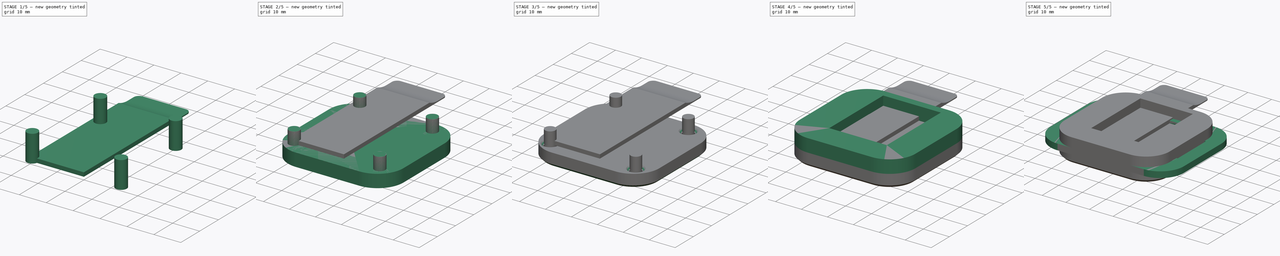
[diagram: build sequence overview — one tinted view per stage of 5, left to right]
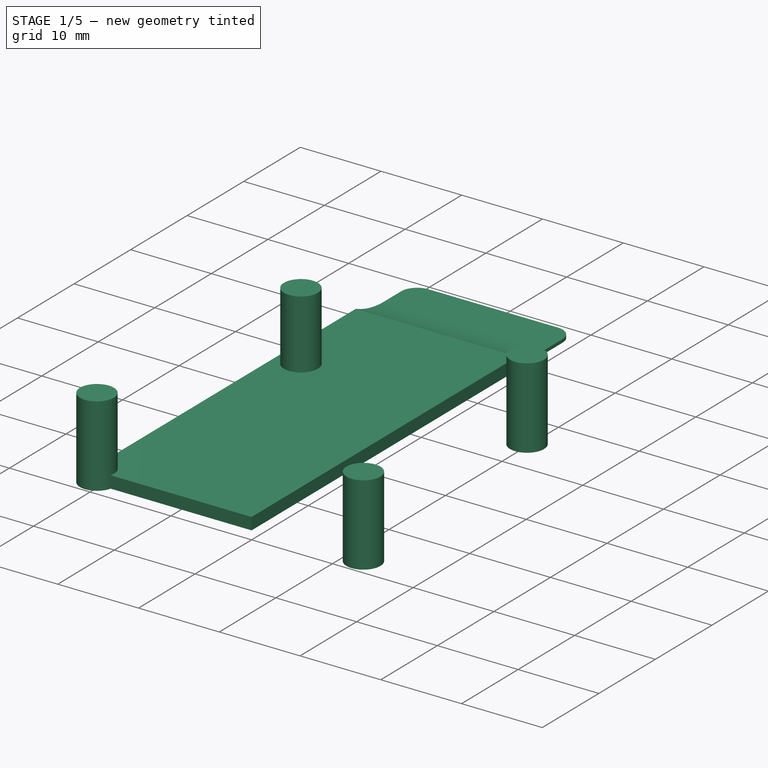
[diagram: stage 1 of 5 — iso view after this stage's code; geometry added in this stage tinted green]
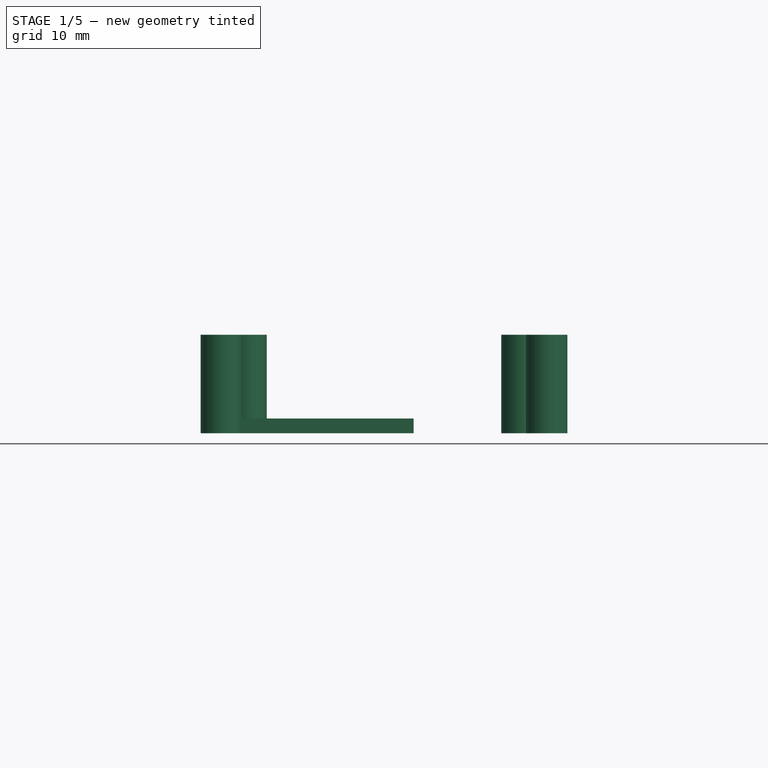
[diagram: stage 1 of 5 — front view after this stage's code; geometry added in this stage tinted green]
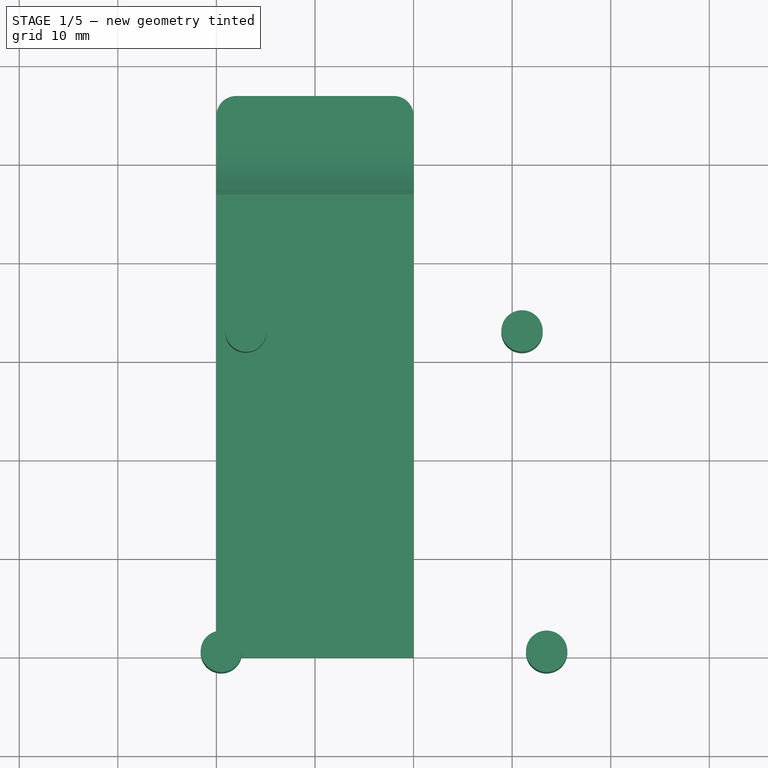
[diagram: stage 1 of 5 — top view after this stage's code; geometry added in this stage tinted green]
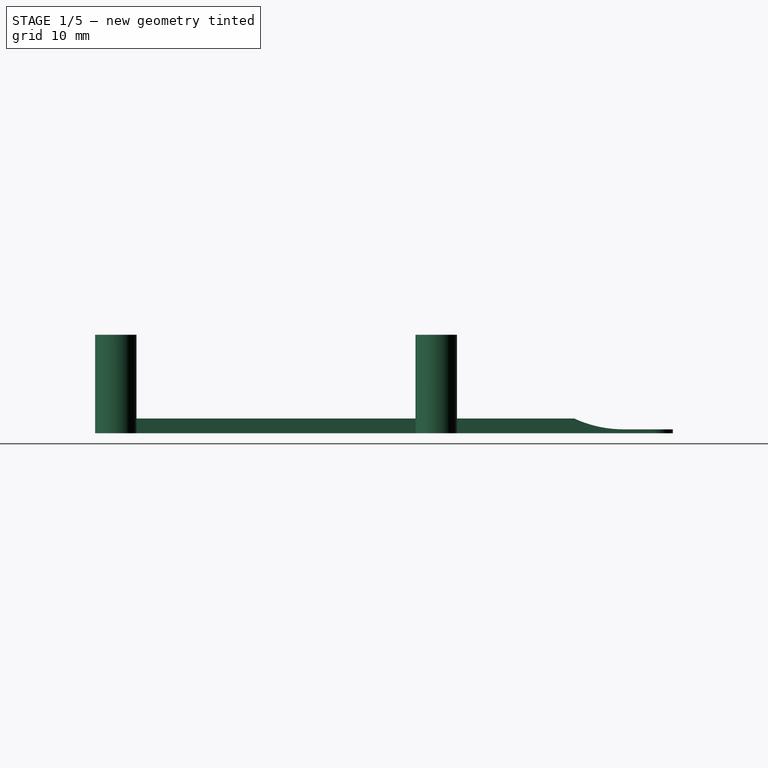
[diagram: stage 1 of 5 — right view after this stage's code; geometry added in this stage tinted green]
FCSTD DOCUMENT  (FreeCAD 0.18R16093 (Git))
Label: EspBoardAssemblyGadgets
License: All rights reserved
LicenseURL: http://en.wikipedia.org/wiki/All_rights_reserved
objects: Part::Extrusion×11, Sketcher::SketchObject×8, Part::Cylinder×8, Part::MultiFuse×6, Part::Cut×5, Image::ImagePlane×3, Part::Chamfer×3, PartDesign::Body×2, Spreadsheet::Sheet×1, Part::Box×1, Part::Offset×1, Part::Offset2D×1, Part::Fillet×1, Part::MultiCommon×1, PartDesign::FeatureBase×1
note: 49 computed .brp shape members not serialized (recipe doc carries the construction recipe); baked Part::Feature solids carry a one-line shape summary decoded from their .brp

FEATURE [Part::Cylinder] Cylinder
  Angle = 360
  AttacherType = Attacher::AttachEngine3D
  Height = 10
  Placement = pos=(0.5,0.5,0) rot=(0,0,1;0rad)
  Radius = 2.1
FEATURE [Part::Cylinder] Cylinder001
  Angle = 360
  AttacherType = Attacher::AttachEngine3D
  Height = 10
  Placement = pos=(33.5,0.5,0) rot=(0,0,1;0rad)
  Radius = 2.1
FEATURE [Part::Cylinder] Cylinder002
  Angle = 360
  AttacherType = Attacher::AttachEngine3D
  Height = 10
  Placement = pos=(3,33,0) rot=(0,0,1;0rad)
  Radius = 2.1
FEATURE [Part::Cylinder] Cylinder003
  Angle = 360
  AttacherType = Attacher::AttachEngine3D
  Height = 10
  Placement = pos=(31,33,0) rot=(0,0,1;0rad)
  Radius = 2.1
FEATURE [Sketcher::SketchObject] Sketch006
  MapMode = 5
  Support = -> [XY_Plane002]
  sketch-geometry (6):
    g0: ArcOfCircle CenterX=2 CenterY=55 CenterZ=0 NormalX=0 NormalY=0 NormalZ=1 AngleXU=0 Radius=2 StartAngle=1.5708 EndAngle=3.14159
    g1: LineSegment StartX=2 StartY=57 StartZ=0 EndX=18 EndY=57 EndZ=0
    g2: ArcOfCircle CenterX=18 CenterY=55 CenterZ=0 NormalX=0 NormalY=0 NormalZ=1 AngleXU=0 Radius=2 StartAngle=0 EndAngle=1.5708
    g3: LineSegment StartX=0 StartY=55 StartZ=0 EndX=0 EndY=0 EndZ=0
    g4: LineSegment StartX=0 StartY=0 StartZ=0 EndX=20 EndY=0 EndZ=0
    g5: LineSegment StartX=20 StartY=0 StartZ=0 EndX=20 EndY=55 EndZ=0
  constraints (19):
    c: Radius(g0) = 2
    c: Coincident(g1,g0)
    c: Horizontal(g1)
    c: Coincident(g2,g1)
    c: Equal(g0,g2)
    c: Vertical(g0,g0)
    c: Vertical(g1,g2)
    c: Horizontal(g0,g0)
    c: Horizontal(g2,g2)
    c: DistanceX(g1,g1) = 16
    c: Coincident(g3,g0)
    c: Vertical(g3)
    c: Coincident(g4,g3)
    c: Horizontal(g4)
    c: Coincident(g5,g4)
    c: Coincident(g5,g2)
    c: Vertical(g5)
    c: DistanceY(g5,g5) = 55
    c: Coincident(g-1,g3)
FEATURE [Sketcher::SketchObject] Sketch007
  ExternalGeometry = -> [Sketch006]
  MapMode = 5
  Placement = pos=(0,0,0) rot=(0.57735,0.57735,0.57735;2.0944rad)
  Support = -> [YZ_Plane002]
  sketch-geometry (6):
    g0: LineSegment StartX=0 StartY=0 StartZ=0 EndX=57 EndY=1.3e-14 EndZ=0
    g1: LineSegment StartX=57 StartY=1.3e-14 StartZ=0 EndX=57 EndY=0.4 EndZ=0
    g2: LineSegment StartX=57 StartY=0.4 StartZ=0 EndX=52 EndY=0.4 EndZ=0
    g3: ArcOfCircle CenterX=52 CenterY=12.3136 CenterZ=0 NormalX=0 NormalY=0 NormalZ=1 AngleXU=0 Radius=11.9136 StartAngle=4.27929 EndAngle=4.71239
    g4: LineSegment StartX=47 StartY=1.5 StartZ=0 EndX=0 EndY=1.5 EndZ=0
    g5: LineSegment StartX=0 StartY=1.5 StartZ=0 EndX=0 EndY=0 EndZ=0
  constraints (16):
    c: Coincident(g0,g-1)
    c: Coincident(g0,g-3)
    c: Coincident(g1,g0)
    c: Vertical(g1)
    c: Coincident(g2,g1)
    c: Horizontal(g2)
    c: Tangent(g3,g2) = 1.5708
    c: Coincident(g4,g3)
    c: Horizontal(g4)
    c: Coincident(g5,g4)
    c: Coincident(g5,g0)
    c: Vertical(g5)
    c: DistanceY(g1,g1) = 0.4
    c: DistanceY(g5,g5) = 1.5
    c: DistanceX(g2,g1) = 5
    c: DistanceX(g3,g2) = 5
FEATURE [Part::Extrusion] Extrude011
  Base = -> Sketch007
  Dir = (1,-2e-16,3e-16)
  DirMode = 2
  FaceMakerClass = Part::FaceMakerBullseye
  LengthFwd = 40
  LengthRev = 0
  Solid = true
  Symmetric = false
FEATURE [Part::Extrusion] Extrude012
  Base = -> Sketch006
  Dir = (0,0,1)
  DirMode = 2
  FaceMakerClass = Part::FaceMakerBullseye
  LengthFwd = 10
  LengthRev = 0
  Solid = true
  Symmetric = false
FEATURE [Part::MultiCommon] Common  label="squeezee"
  Shapes = -> [Extrude011,Extrude012]
FEATURE [PartDesign::FeatureBase] BaseFeature
  BaseFeature = -> Common
FEATURE [PartDesign::Body] Body002
  BaseFeature = -> Common
  Group = -> [BaseFeature,Sketch006,Sketch007]
  Origin = -> Origin002
  Tip = -> BaseFeature
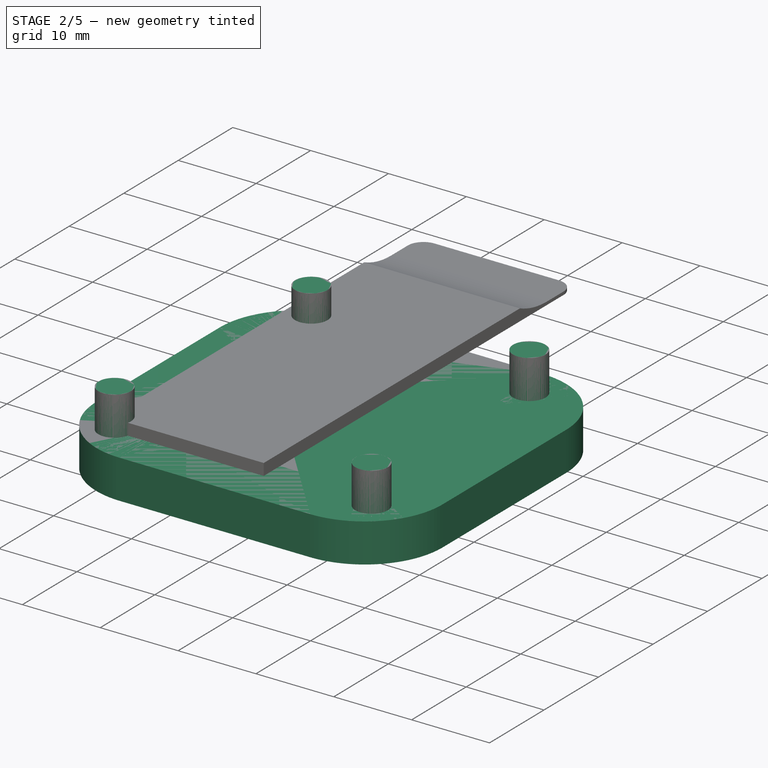
[diagram: stage 2 of 5 — iso view after this stage's code; geometry added in this stage tinted green]
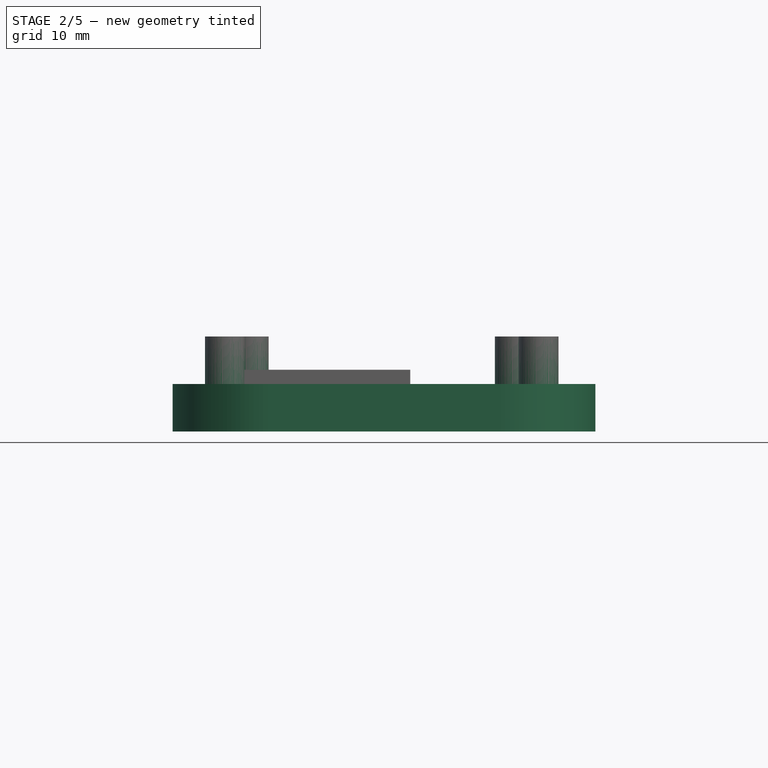
[diagram: stage 2 of 5 — front view after this stage's code; geometry added in this stage tinted green]
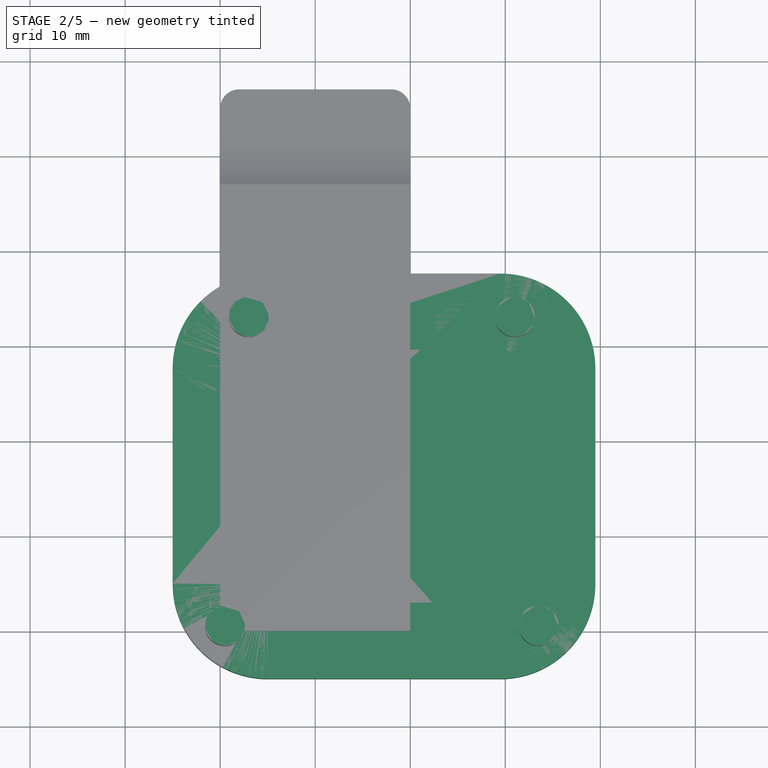
[diagram: stage 2 of 5 — top view after this stage's code; geometry added in this stage tinted green]
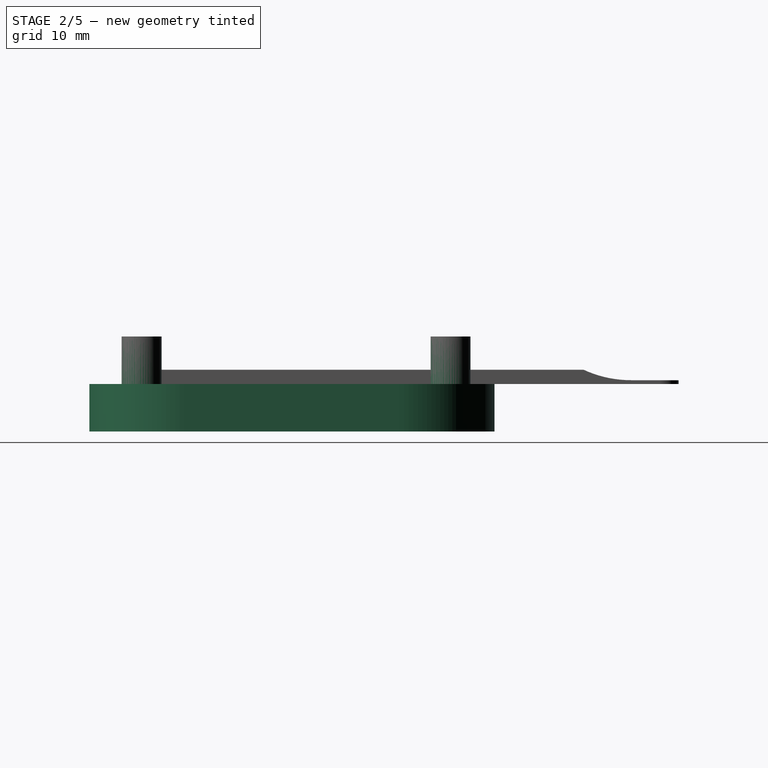
[diagram: stage 2 of 5 — right view after this stage's code; geometry added in this stage tinted green]
FEATURE [Part::Extrusion] Extrude006
  Base = -> Sketch005
  Dir = (0,0,1)
  DirMode = 2
  FaceMakerClass = Part::FaceMakerBullseye
  LengthFwd = 0
  LengthRev = 0.2
  Solid = true
  Symmetric = false
  expr: LengthRev = p.sst
FEATURE [Part::Extrusion] Extrude007
  Base = -> Sketch004
  Dir = (0,0,1)
  DirMode = 2
  FaceMakerClass = Part::FaceMakerBullseye
  LengthFwd = 10
  LengthRev = 10
  Solid = true
  Symmetric = false
FEATURE [Part::Cut] Cut002  label="SilkScreen"
  Base = -> Extrude006
  Tool = -> Extrude007
FEATURE [Part::Offset2D] Offset2D
  Fill = false
  Intersection = false
  Join = 0
  Mode = 1
  SelfIntersection = false
  Source = -> Sketch005
  Value = -8
FEATURE [Part::Extrusion] Extrude009
  Base = -> Offset2D
  Dir = (0,0,1)
  DirMode = 2
  FaceMakerClass = Part::FaceMakerBullseye
  LengthFwd = 0
  LengthRev = -10
  Solid = true
  Symmetric = false
FEATURE [Part::Extrusion] Extrude010
  Base = -> Sketch005
  Dir = (0,0,1)
  DirMode = 2
  FaceMakerClass = Part::FaceMakerBullseye
  LengthFwd = 0
  LengthRev = -5
  Solid = true
  Symmetric = false
FEATURE [Part::Cut] Cut003
  Base = -> Extrude010
  Placement = pos=(0,0,-5) rot=(0,0,1;0rad)
  Tool = -> Extrude009
FEATURE [Part::MultiFuse] Fusion003
  Placement = pos=(0,0,-5) rot=(0,0,1;0rad)
  Shapes = -> [Cylinder,Cylinder001,Cylinder002,Cylinder003]
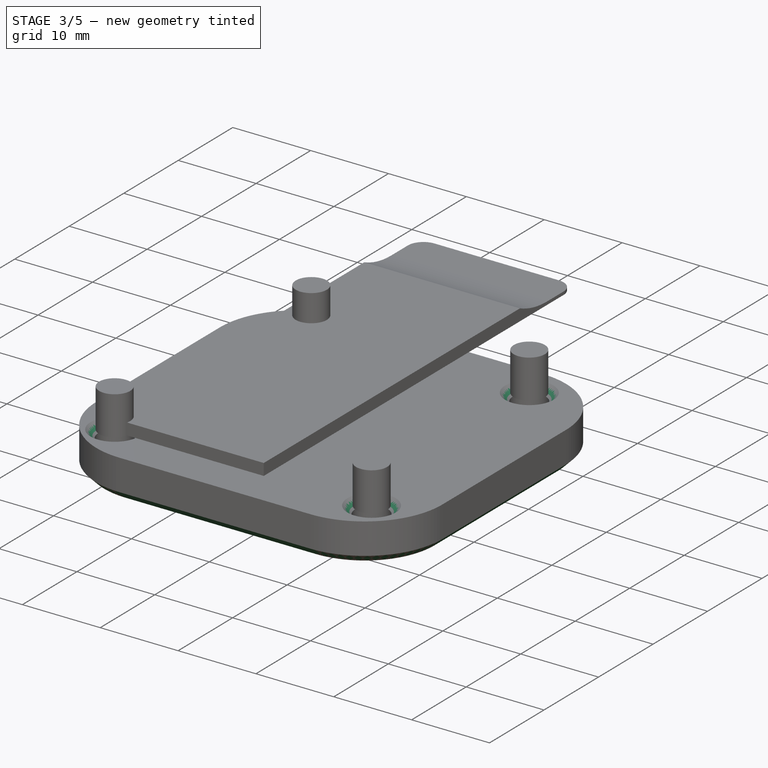
[diagram: stage 3 of 5 — iso view after this stage's code; geometry added in this stage tinted green]
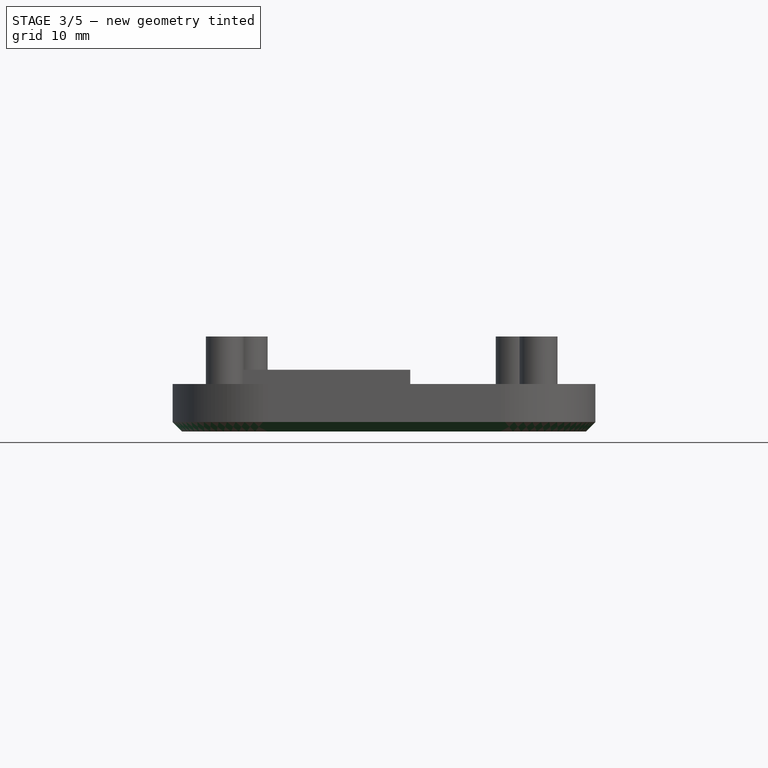
[diagram: stage 3 of 5 — front view after this stage's code; geometry added in this stage tinted green]
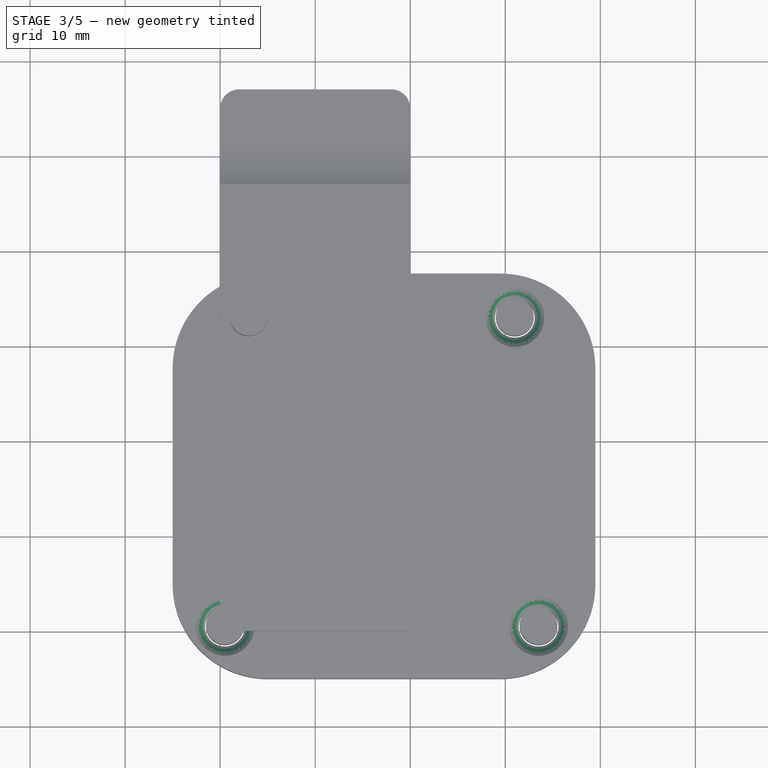
[diagram: stage 3 of 5 — top view after this stage's code; geometry added in this stage tinted green]
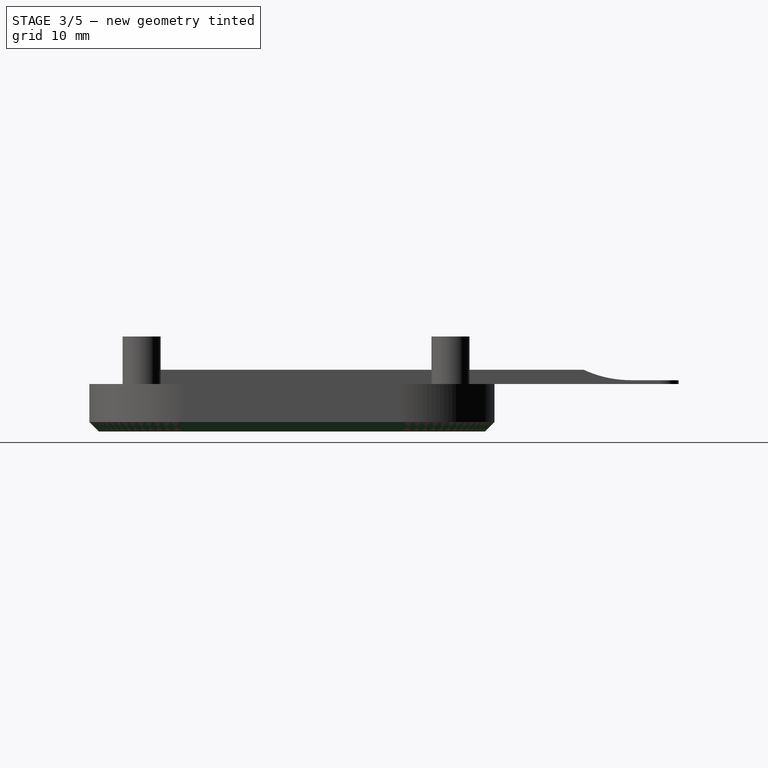
[diagram: stage 3 of 5 — right view after this stage's code; geometry added in this stage tinted green]
FEATURE [Part::MultiFuse] Fusion002
  Shapes = -> [Cut002,Cut003]
FEATURE [Part::Cylinder] Cylinder004
  Angle = 360
  AttacherType = Attacher::AttachEngine3D
  Height = 5
  Placement = pos=(0.5,0.5,0) rot=(0,0,1;0rad)
  Radius = 2
FEATURE [Part::Cylinder] Cylinder005
  Angle = 360
  AttacherType = Attacher::AttachEngine3D
  Height = 5
  Placement = pos=(33.5,0.5,0) rot=(0,0,1;0rad)
  Radius = 2
FEATURE [Part::Cylinder] Cylinder006
  Angle = 360
  AttacherType = Attacher::AttachEngine3D
  Height = 5
  Placement = pos=(3,33,0) rot=(0,0,1;0rad)
  Radius = 2
FEATURE [Part::Cylinder] Cylinder007
  Angle = 360
  AttacherType = Attacher::AttachEngine3D
  Height = 5
  Placement = pos=(31,33,0) rot=(0,0,1;0rad)
  Radius = 2
FEATURE [Part::Cut] Cut004
  Base = -> Fusion002
  Tool = -> Fusion003
FEATURE [Part::Chamfer] Chamfer002
  Base = -> Cut004
  Edges = 6 edges r=1: [Edge19,Edge20,Edge29,Edge30,Edge42,Edge48]
FEATURE [Part::Fillet] Fillet  label="StencilPlate"
  Base = -> Chamfer002
  Edges = 1 edges r=2: [Edge166]
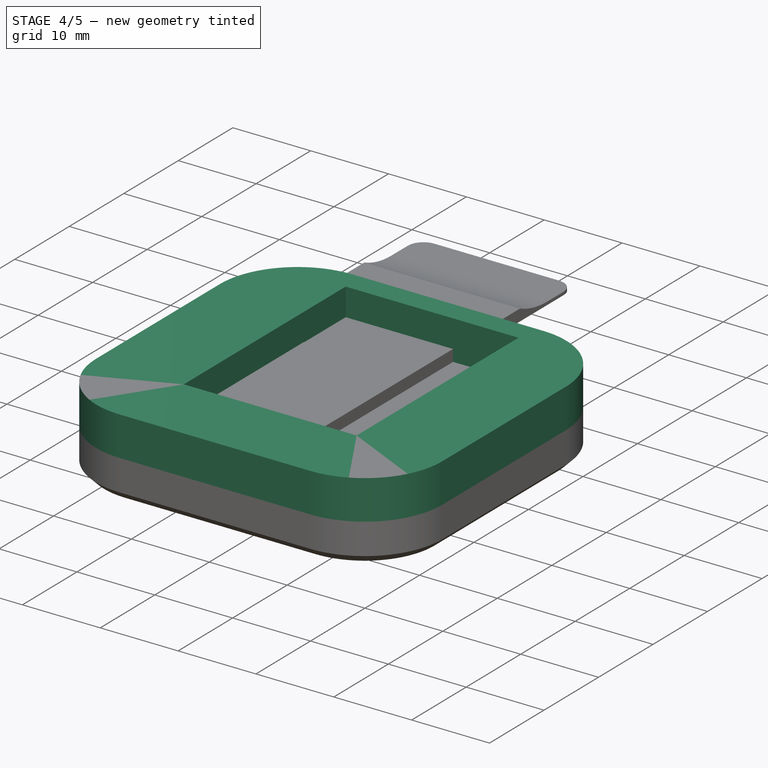
[diagram: stage 4 of 5 — iso view after this stage's code; geometry added in this stage tinted green]
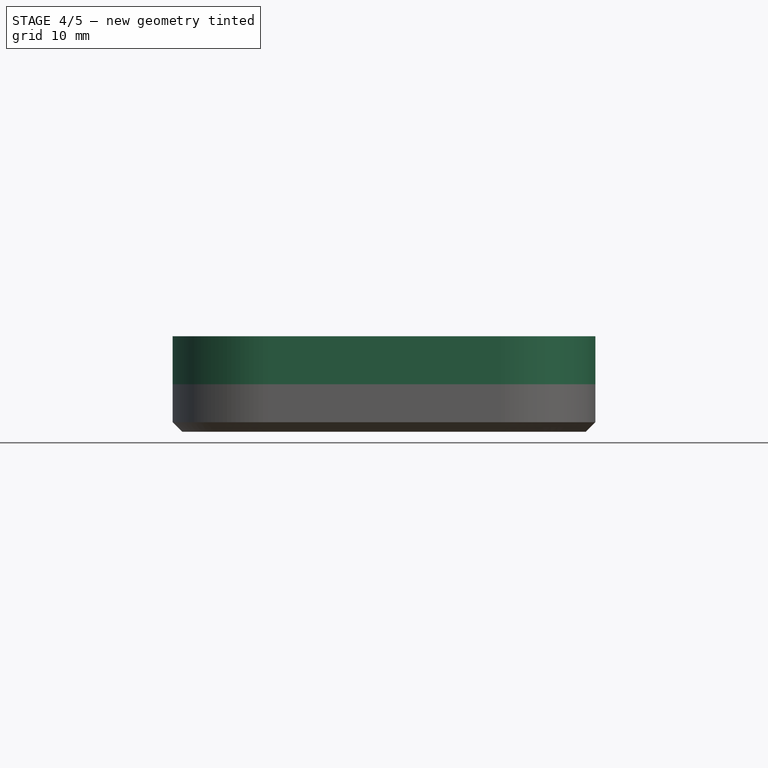
[diagram: stage 4 of 5 — front view after this stage's code; geometry added in this stage tinted green]
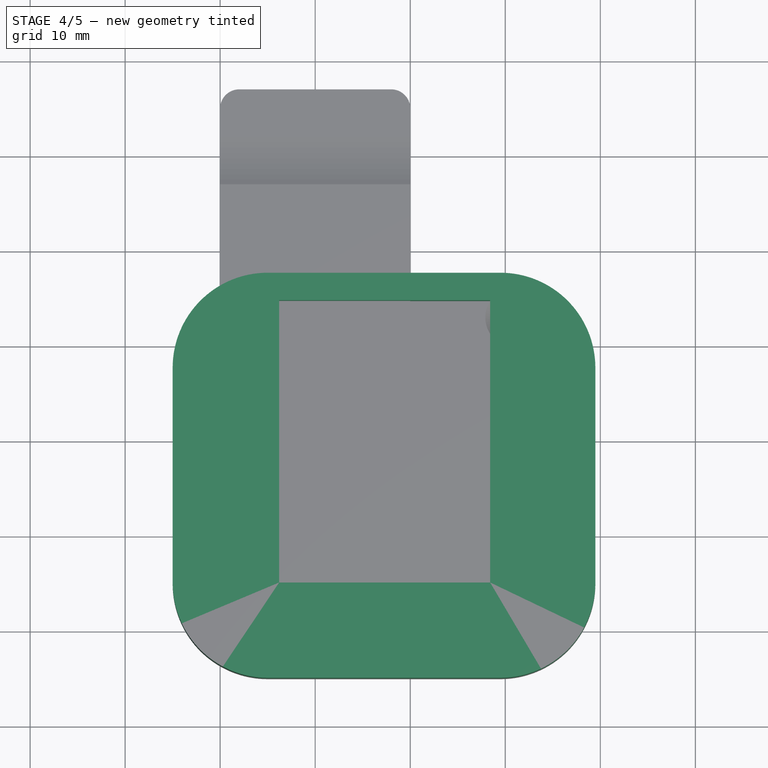
[diagram: stage 4 of 5 — top view after this stage's code; geometry added in this stage tinted green]
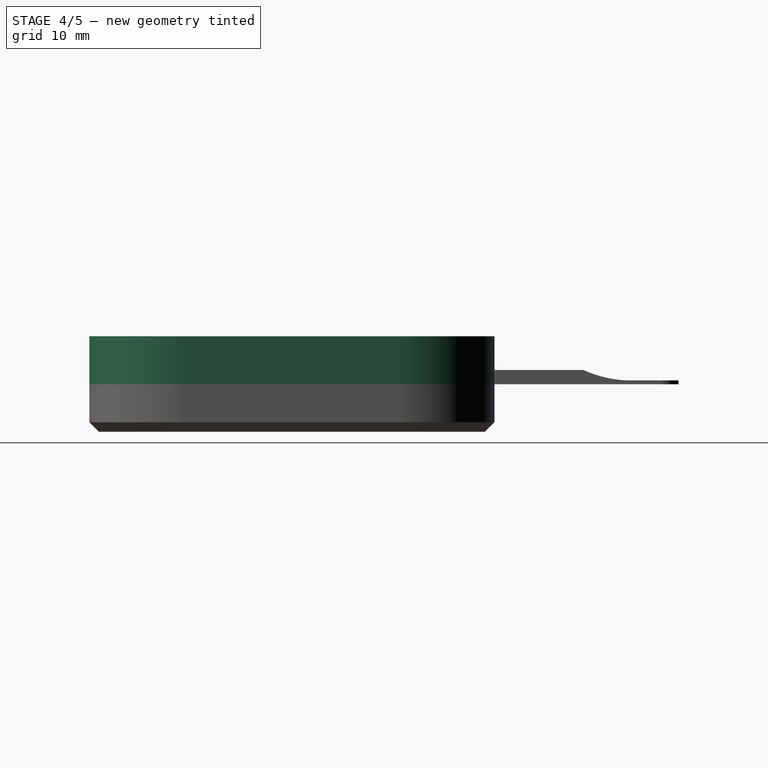
[diagram: stage 4 of 5 — right view after this stage's code; geometry added in this stage tinted green]
FEATURE [Sketcher::SketchObject] Sketch004  label="soldermask"
  MapMode = 5
  Support = -> [XY_Plane]
  sketch-geometry (56):
    g0: LineSegment StartX=12.0779 StartY=23.8044 StartZ=0 EndX=13.0701 EndY=23.8044 EndZ=0
    g1: LineSegment StartX=13.0701 StartY=23.8044 StartZ=0 EndX=13.0701 EndY=22.398 EndZ=0
    g2: LineSegment StartX=13.0701 StartY=22.398 StartZ=0 EndX=12.0779 EndY=22.398 EndZ=0
    g3: LineSegment StartX=12.0779 StartY=22.398 StartZ=0 EndX=12.0779 EndY=23.8044 EndZ=0
    g4: LineSegment StartX=13.9449 StartY=23.7826 StartZ=0 EndX=14.9216 EndY=23.7826 EndZ=0
    g5: LineSegment StartX=14.9216 StartY=23.7826 StartZ=0 EndX=14.9216 EndY=22.3871 EndZ=0
    g6: LineSegment StartX=14.9216 StartY=22.3871 StartZ=0 EndX=13.9449 EndY=22.3871 EndZ=0
    g7: LineSegment StartX=13.9449 StartY=22.3871 StartZ=0 EndX=13.9449 EndY=23.7826 EndZ=0
    g8: LineSegment StartX=14.1681 StartY=20.097 StartZ=0 EndX=15.7308 EndY=20.097 EndZ=0
    g9: LineSegment StartX=15.7308 StartY=20.097 StartZ=0 EndX=15.7308 EndY=17.9824 EndZ=0
    g10: LineSegment StartX=15.7308 StartY=17.9824 StartZ=0 EndX=14.1681 EndY=17.9824 EndZ=0
    g11: LineSegment StartX=14.1681 StartY=17.9824 StartZ=0 EndX=14.1681 EndY=20.097 EndZ=0
    g12: LineSegment StartX=11.8578 StartY=20.097 StartZ=0 EndX=13.4205 EndY=20.097 EndZ=0
    g13: LineSegment StartX=13.4205 StartY=20.097 StartZ=0 EndX=13.4205 EndY=17.9824 EndZ=0
    g14: LineSegment StartX=13.4205 StartY=17.9824 StartZ=0 EndX=11.8578 EndY=17.9824 EndZ=0
    g15: LineSegment StartX=11.8578 StartY=17.9824 StartZ=0 EndX=11.8578 EndY=20.097 EndZ=0
    g16: LineSegment StartX=9.51614 StartY=20.097 StartZ=0 EndX=11.0789 EndY=20.097 EndZ=0
    g17: LineSegment StartX=11.0789 StartY=20.097 StartZ=0 EndX=11.0789 EndY=17.9824 EndZ=0
    g18: LineSegment StartX=11.0789 StartY=17.9824 StartZ=0 EndX=9.51614 EndY=17.9824 EndZ=0
    g19: LineSegment StartX=9.51614 StartY=17.9824 StartZ=0 EndX=9.51614 EndY=20.097 EndZ=0
    g20: LineSegment StartX=10.6809 StartY=13.8025 StartZ=0 EndX=14.5523 EndY=13.8025 EndZ=0
    g21: LineSegment StartX=14.5523 StartY=13.8025 StartZ=0 EndX=14.5523 EndY=11.7179 EndZ=0
    g22: LineSegment StartX=14.5523 StartY=11.7179 StartZ=0 EndX=10.6809 EndY=11.7179 EndZ=0
    g23: LineSegment StartX=10.6809 StartY=11.7179 StartZ=0 EndX=10.6809 EndY=13.8025 EndZ=0
    g24: LineSegment StartX=10.6208 StartY=22.6272 StartZ=0 EndX=11.5608 EndY=22.6272 EndZ=0
    g25: LineSegment StartX=11.5608 StartY=22.6272 StartZ=0 EndX=11.5608 EndY=21.6872 EndZ=0
    g26: LineSegment StartX=11.5608 StartY=21.6872 StartZ=0 EndX=10.6208 EndY=21.6872 EndZ=0
    g27: LineSegment StartX=10.6208 StartY=21.6872 StartZ=0 EndX=10.6208 EndY=22.6272 EndZ=0
    g28: LineSegment StartX=10.5198 StartY=24.2112 StartZ=0 EndX=11.4598 EndY=24.2112 EndZ=0
    g29: LineSegment StartX=11.4598 StartY=24.2112 StartZ=0 EndX=11.4598 EndY=23.2712 EndZ=0
    g30: LineSegment StartX=11.4598 StartY=23.2712 StartZ=0 EndX=10.5198 EndY=23.2712 EndZ=0
    g31: LineSegment StartX=10.5198 StartY=23.2712 StartZ=0 EndX=10.5198 EndY=24.2112 EndZ=0
    g32: LineSegment StartX=10.5198 StartY=25.8066 StartZ=0 EndX=11.4598 EndY=25.8066 EndZ=0
    g33: LineSegment StartX=11.4598 StartY=25.8066 StartZ=0 EndX=11.4598 EndY=24.8666 EndZ=0
    g34: LineSegment StartX=11.4598 StartY=24.8666 StartZ=0 EndX=10.5198 EndY=24.8666 EndZ=0
    g35: LineSegment StartX=10.5198 StartY=24.8666 StartZ=0 EndX=10.5198 EndY=25.8066 EndZ=0
    g36: LineSegment StartX=8.69664 StartY=25.8066 StartZ=0 EndX=9.63664 EndY=25.8066 EndZ=0
    g37: LineSegment StartX=9.63664 StartY=25.8066 StartZ=0 EndX=9.63664 EndY=24.8666 EndZ=0
    g38: LineSegment StartX=9.63664 StartY=24.8666 StartZ=0 EndX=8.69664 EndY=24.8666 EndZ=0
    g39: LineSegment StartX=8.69664 StartY=24.8666 StartZ=0 EndX=8.69664 EndY=25.8066 EndZ=0
    g40: LineSegment StartX=8.69664 StartY=24.2112 StartZ=0 EndX=9.63664 EndY=24.2112 EndZ=0
    g41: LineSegment StartX=9.63664 StartY=24.2112 StartZ=0 EndX=9.63664 EndY=23.2712 EndZ=0
    g42: LineSegment StartX=9.63664 StartY=23.2712 StartZ=0 EndX=8.69664 EndY=23.2712 EndZ=0
    g43: LineSegment StartX=8.69664 StartY=23.2712 StartZ=0 EndX=8.69664 EndY=24.2112 EndZ=0
    g44: LineSegment StartX=8.97061 StartY=22.6272 StartZ=0 EndX=9.91061 EndY=22.6272 EndZ=0
    g45: LineSegment StartX=9.91061 StartY=22.6272 StartZ=0 EndX=9.91061 EndY=21.6872 EndZ=0
    g46: LineSegment StartX=9.91061 StartY=21.6872 StartZ=0 EndX=8.97061 EndY=21.6872 EndZ=0
    g47: LineSegment StartX=8.97061 StartY=21.6872 StartZ=0 EndX=8.97061 EndY=22.6272 EndZ=0
    g48: LineSegment StartX=7.0541 StartY=22.0767 StartZ=0 EndX=7.9941 EndY=22.0767 EndZ=0
    g49: LineSegment StartX=7.9941 StartY=22.0767 StartZ=0 EndX=7.9941 EndY=21.1367 EndZ=0
    g50: LineSegment StartX=7.9941 StartY=21.1367 StartZ=0 EndX=7.0541 EndY=21.1367 EndZ=0
    g51: LineSegment StartX=7.0541 StartY=21.1367 StartZ=0 EndX=7.0541 EndY=22.0767 EndZ=0
    g52: LineSegment StartX=7.0541 StartY=20.5162 StartZ=0 EndX=7.9941 EndY=20.5162 EndZ=0
    g53: LineSegment StartX=7.9941 StartY=20.5162 StartZ=0 EndX=7.9941 EndY=19.5762 EndZ=0
    g54: LineSegment StartX=7.9941 StartY=19.5762 StartZ=0 EndX=7.0541 EndY=19.5762 EndZ=0
    g55: LineSegment StartX=7.0541 StartY=19.5762 StartZ=0 EndX=7.0541 EndY=20.5162 EndZ=0
  constraints (140):
    c: Coincident(g0,g1)
    c: Coincident(g1,g2)
    c: Coincident(g2,g3)
    c: Coincident(g3,g0)
    c: Horizontal(g0)
    c: Horizontal(g2)
    c: Vertical(g1)
    c: Vertical(g3)
    c: Coincident(g4,g5)
    c: Coincident(g5,g6)
    c: Coincident(g6,g7)
    c: Coincident(g7,g4)
    c: Horizontal(g4)
    c: Horizontal(g6)
    c: Vertical(g5)
    c: Vertical(g7)
    c: Coincident(g8,g9)
    c: Coincident(g9,g10)
    c: Coincident(g10,g11)
    c: Coincident(g11,g8)
    c: Horizontal(g8)
    c: Horizontal(g10)
    c: Vertical(g9)
    c: Vertical(g11)
    c: Coincident(g12,g13)
    c: Coincident(g13,g14)
    c: Coincident(g14,g15)
    c: Coincident(g15,g12)
    c: Horizontal(g12)
    c: Horizontal(g14)
    c: Vertical(g13)
    c: Vertical(g15)
    c: Coincident(g16,g17)
    c: Coincident(g17,g18)
    c: Coincident(g18,g19)
    c: Coincident(g19,g16)
    c: Horizontal(g16)
    c: Horizontal(g18)
    c: Vertical(g17)
    c: Vertical(g19)
    c: Coincident(g20,g21)
    c: Coincident(g21,g22)
    c: Coincident(g22,g23)
    c: Coincident(g23,g20)
    c: Horizontal(g20)
    c: Horizontal(g22)
    c: Vertical(g21)
    c: Vertical(g23)
    c: Coincident(g24,g25)
    c: Coincident(g25,g26)
    c: Coincident(g26,g27)
    c: Coincident(g27,g24)
    c: Horizontal(g24)
    c: Horizontal(g26)
    c: Vertical(g25)
    c: Vertical(g27)
    c: Coincident(g28,g29)
    c: Coincident(g29,g30)
    c: Coincident(g30,g31)
    c: Coincident(g31,g28)
    c: Horizontal(g28)
    c: Horizontal(g30)
    c: Coincident(g32,g33)
    c: Coincident(g33,g34)
    c: Coincident(g34,g35)
    c: Coincident(g35,g32)
    c: Horizontal(g32)
    c: Horizontal(g34)
    c: Vertical(g33)
    c: Vertical(g35)
    c: Coincident(g36,g37)
    c: Coincident(g37,g38)
    c: Coincident(g38,g39)
    c: Coincident(g39,g36)
    c: Horizontal(g36)
    c: Horizontal(g38)
    c: Vertical(g37)
    c: Vertical(g39)
    c: Coincident(g40,g41)
    c: Coincident(g41,g42)
    c: Coincident(g42,g43)
    c: Coincident(g43,g40)
    c: Horizontal(g40)
    c: Horizontal(g42)
    c: Vertical(g41)
    c: Vertical(g43)
    c: Coincident(g44,g45)
    c: Coincident(g45,g46)
    c: Coincident(g46,g47)
    c: Coincident(g47,g44)
    c: Horizontal(g44)
    c: Horizontal(g46)
    c: Vertical(g45)
    c: Vertical(g47)
    c: Coincident(g48,g49)
    c: Coincident(g49,g50)
    c: Coincident(g50,g51)
    c: Coincident(g51,g48)
    c: Horizontal(g48)
    c: Horizontal(g50)
    c: Vertical(g49)
    c: Vertical(g51)
    c: Coincident(g52,g53)
    c: Coincident(g53,g54)
    c: Coincident(g54,g55)
    c: Coincident(g55,g52)
    c: Horizontal(g52)
    c: Horizontal(g54)
    c: Vertical(g53)
    c: Vertical(g55)
    c: Equal(g26,g25)
    c: Equal(g25,g30)
    c: Equal(g30,g29)
    c: Equal(g29,g34)
    c: Equal(g34,g33)
    c: Vertical(g31)
    c: Vertical(g29)
    c: Vertical(g33,g29)
    c: Equal(g37,g38)
    c: Equal(g38,g41)
    c: Equal(g41,g42)
    c: Equal(g42,g45)
    c: Equal(g45,g46)
    c: Equal(g46,g49)
    c: Equal(g49,g50)
    c: Equal(g50,g53)
    c: Equal(g53,g54)
    c: Equal(g54,g26)
    c: Horizontal(g45,g25)
    c: DistanceX(g32,g32) = 0.94
    c: Horizontal(g36,g32)
    c: Horizontal(g40,g28)
    c: Vertical(g37,g40)
    c: Vertical(g49,g52)
    c: Horizontal(g16,g12)
    c: Horizontal(g12,g8)
    c: Horizontal(g10,g13)
    c: Horizontal(g13,g17)
    c: Equal(g18,g14)
    c: Equal(g14,g10)
FEATURE [Image::ImagePlane] ImagePlane002
  Placement = pos=(17.291,16.6132,0) rot=(0,0,1;0rad)
  XSize = 35.3546
  YSize = 21.38
  expr: YSize = 21.38
  expr: XSize = 350 / 9.899699999999999
FEATURE [Sketcher::SketchObject] Sketch005  label="outline_stencil"
  ExternalGeometry = -> [Sketch]
  MapMode = 5
  Support = -> [XY_Plane]
  sketch-geometry (8):
    g0: ArcOfCircle CenterX=5 CenterY=27.624 CenterZ=0 NormalX=0 NormalY=0 NormalZ=1 AngleXU=0 Radius=10 StartAngle=1.5708 EndAngle=3.14159
    g1: ArcOfCircle CenterX=29.479 CenterY=27.624 CenterZ=0 NormalX=0 NormalY=0 NormalZ=1 AngleXU=0 Radius=10 StartAngle=0 EndAngle=1.5708
    g2: ArcOfCircle CenterX=29.479 CenterY=5 CenterZ=0 NormalX=0 NormalY=0 NormalZ=1 AngleXU=0 Radius=10 StartAngle=4.71239 EndAngle=6.28319
    g3: ArcOfCircle CenterX=5 CenterY=5 CenterZ=0 NormalX=0 NormalY=0 NormalZ=1 AngleXU=0 Radius=10 StartAngle=3.14159 EndAngle=4.71239
    g4: LineSegment StartX=5 StartY=37.624 StartZ=0 EndX=29.479 EndY=37.624 EndZ=0
    g5: LineSegment StartX=39.479 StartY=27.624 StartZ=0 EndX=39.479 EndY=5 EndZ=0
    g6: LineSegment StartX=29.479 StartY=-5 StartZ=0 EndX=5 EndY=-5 EndZ=0
    g7: LineSegment StartX=-5 StartY=5 StartZ=0 EndX=-5 EndY=27.624 EndZ=0
  constraints (20):
    c: Horizontal(g4)
    c: Vertical(g7)
    c: Vertical(g5)
    c: Equal(g0,g1)
    c: Equal(g1,g2)
    c: Equal(g2,g3)
    c: Horizontal(g6)
    c: Tangent(g4,g1) = 1.5708
    c: Tangent(g5,g1) = 1.5708
    c: Tangent(g5,g2) = 1.5708
    c: Tangent(g6,g2) = 1.5708
    c: DistanceY(g-3,g1) = 5
    c: DistanceY(g2,g-6) = 5
    c: Tangent(g4,g0) = 1.5708
    c: Tangent(g7,g0) = 1.5708
    c: Tangent(g3,g7) = 1.5708
    c: Tangent(g6,g3) = 1.5708
    c: Radius(g0) = 10
    c: DistanceX(g0,g-11) = 5
    c: DistanceX(g-11,g1) = 5
FEATURE [PartDesign::Body] Body
  Group = -> [Sketch,Sketch001,Sketch002,Sketch003,Sketch004,Sketch005]
  Origin = -> Origin
FEATURE [Part::Extrusion] Extrude003  label="StencilBaseBody"
  Base = -> Sketch005
  Dir = (0,0,1)
  DirMode = 2
  FaceMakerClass = Part::FaceMakerBullseye
  LengthFwd = 5.05
  LengthRev = 0
  Solid = true
  Symmetric = false
  expr: LengthFwd = p.bbt + p.tbk
FEATURE [Part::Extrusion] Extrude004
  Base = -> Sketch002
  Dir = (0,0,1)
  DirMode = 2
  FaceMakerClass = Part::FaceMakerBullseye
  LengthFwd = 1.55
  LengthRev = 0
  Solid = true
  Symmetric = false
  expr: LengthFwd = p.bbt
FEATURE [Part::Offset] Offset
  Fill = false
  Intersection = false
  Join = 2
  Mode = 0
  SelfIntersection = false
  Value = 2
FEATURE [Part::MultiFuse] Fusion001
  Shapes = -> [Extrude004,Offset]
FEATURE [Part::Cut] Cut001
  Base = -> Extrude003
  Tool = -> Fusion001
FEATURE [Part::MultiFuse] Fusion004
  Placement = pos=(0,0,-5) rot=(0,0,1;0rad)
  Shapes = -> [Cylinder007,Cylinder006,Cylinder005,Cylinder004]
FEATURE [Part::MultiFuse] Fusion005
  Shapes = -> [Cut001,Fusion004]
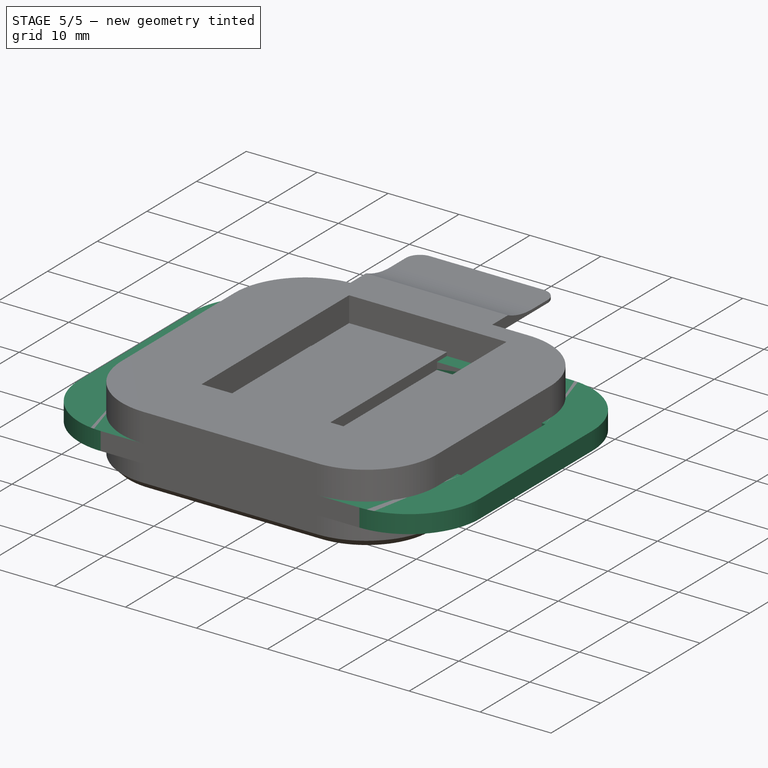
[diagram: stage 5 of 5 — iso view after this stage's code; geometry added in this stage tinted green]
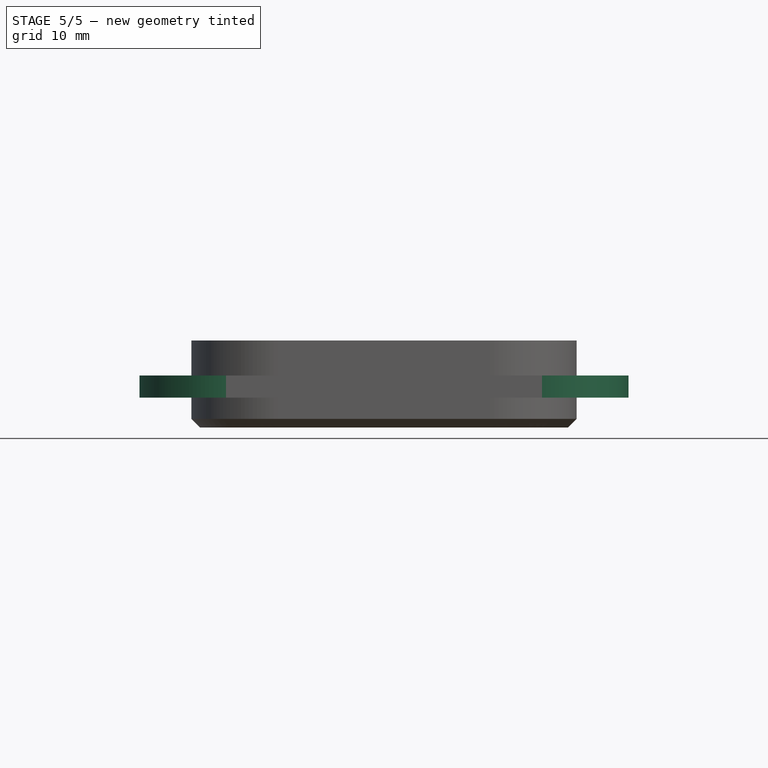
[diagram: stage 5 of 5 — front view after this stage's code; geometry added in this stage tinted green]
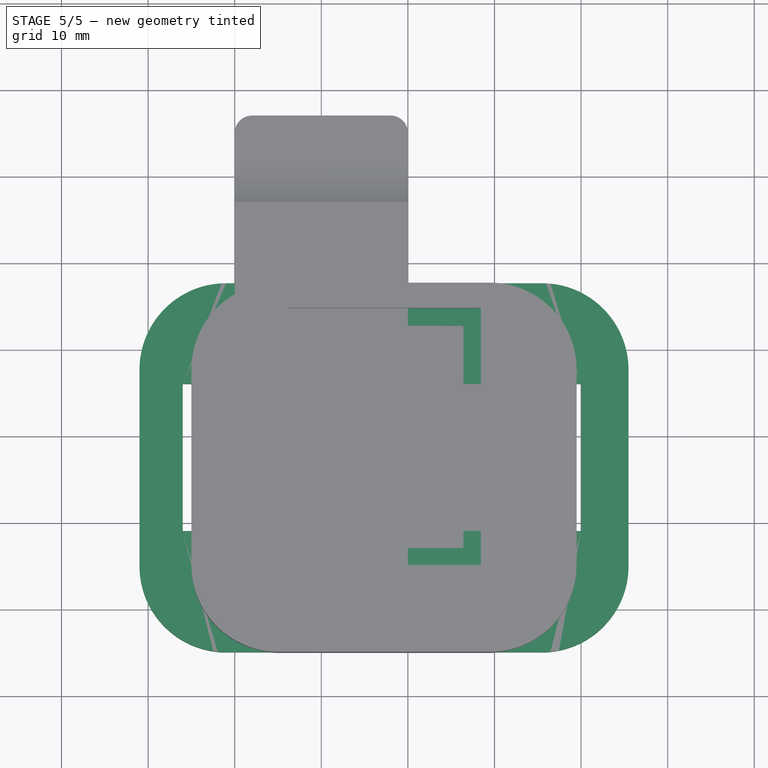
[diagram: stage 5 of 5 — top view after this stage's code; geometry added in this stage tinted green]
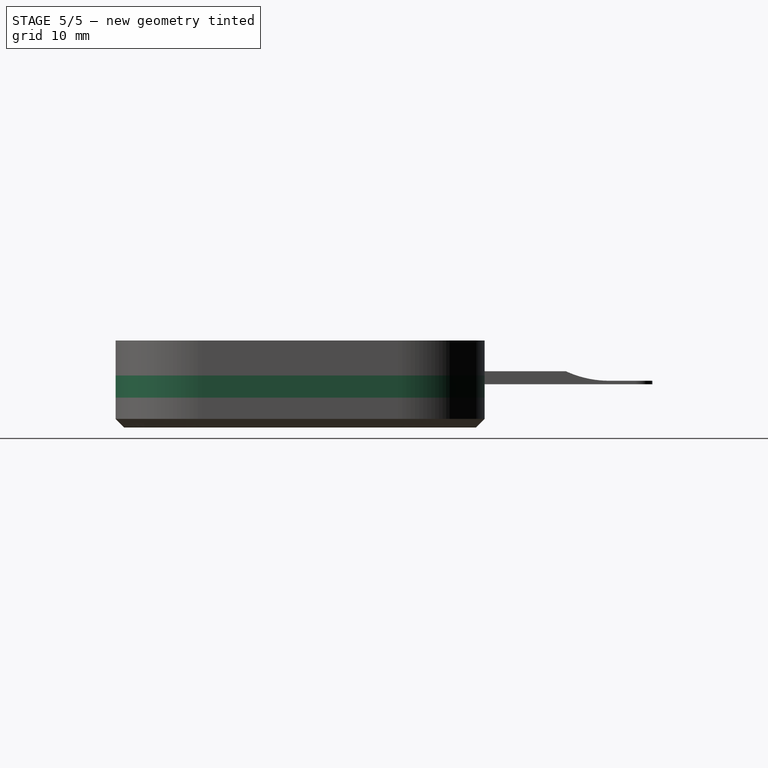
[diagram: stage 5 of 5 — right view after this stage's code; geometry added in this stage tinted green]
FEATURE [Sketcher::SketchObject] Sketch  label="base_board_geometry"
  MapMode = 5
  Support = -> [XY_Plane]
  sketch-geometry (17):
    g0: LineSegment StartX=9.461 StartY=0 StartZ=0 EndX=25.653 EndY=0 EndZ=0
    g1: LineSegment StartX=25.653 StartY=0 StartZ=0 EndX=25.653 EndY=6.413 EndZ=0
    g2: LineSegment StartX=25.653 StartY=6.413 StartZ=0 EndX=34.479 EndY=6.413 EndZ=0
    g3: LineSegment StartX=34.479 StartY=6.413 StartZ=0 EndX=34.479 EndY=27.05 EndZ=0
    g4: LineSegment StartX=34.479 StartY=27.05 StartZ=0 EndX=0 EndY=27.05 EndZ=0
    g5: LineSegment StartX=0 StartY=27.05 StartZ=0 EndX=0 EndY=6.413 EndZ=0
    g6: LineSegment StartX=0 StartY=6.413 StartZ=0 EndX=9.461 EndY=6.413 EndZ=0
    g7: LineSegment StartX=9.461 StartY=6.413 StartZ=0 EndX=9.461 EndY=0 EndZ=0
    g8: LineSegment StartX=8.30815 StartY=32.624 StartZ=0 EndX=26.3081 EndY=32.624 EndZ=0
    g9: LineSegment StartX=26.3081 StartY=32.624 StartZ=0 EndX=26.3081 EndY=7.12396 EndZ=0
    g10: LineSegment StartX=26.3081 StartY=7.12397 StartZ=0 EndX=8.30815 EndY=7.12397 EndZ=0
    g11: LineSegment StartX=8.30815 StartY=7.12397 StartZ=0 EndX=8.30815 EndY=32.624 EndZ=0
    g12: LineSegment StartX=-6 StartY=25.55 StartZ=0 EndX=40.479 EndY=25.55 EndZ=0
    g13: LineSegment StartX=40.479 StartY=25.55 StartZ=0 EndX=40.479 EndY=9.12397 EndZ=0
    g14: LineSegment StartX=40.479 StartY=9.12397 StartZ=0 EndX=-6 EndY=9.12397 EndZ=0
    g15: LineSegment StartX=-6 StartY=9.12397 StartZ=0 EndX=-6 EndY=25.55 EndZ=0
    g16: LineSegment StartX=17.3081 StartY=62.624 StartZ=0 EndX=17.3081 EndY=-30 EndZ=0
  constraints (52):
    c: Coincident(g0,g1)
    c: Coincident(g1,g2)
    c: Coincident(g2,g3)
    c: Coincident(g3,g4)
    c: Coincident(g4,g5)
    c: Coincident(g5,g6)
    c: Coincident(g6,g7)
    c: Coincident(g7,g0)
    c: Horizontal(g6)
    c: Horizontal(g2)
    c: Horizontal(g4)
    c: Horizontal(g0)
    c: Vertical(g5)
    c: Vertical(g7)
    c: Vertical(g1)
    c: Vertical(g3)
    c: DistanceX(g6,g6) = 9.461
    c: Vertical(g5,g-1)
    c: DistanceY(g7,g7) = 6.413
    c: DistanceX(g2,g2) = 8.826
    c: DistanceX(g0,g0) = 16.192
    c: Horizontal(g0,g-1)
    c: DistanceY(g5,g5) = 20.637
    c: Horizontal(g1,g6)
    c: Coincident(g8,g9)
    c: Coincident(g9,g10)
    c: Coincident(g10,g11)
    c: Coincident(g11,g8)
    c: Horizontal(g8)
    c: Horizontal(g10)
    c: Vertical(g9)
    c: Vertical(g11)
    c: DistanceX(g8,g8) = 18
    c: DistanceY(g11,g11) = 25.5
    c: DistanceX(g10) = 8.30815
    c: DistanceY(g10) = 7.12397
    c: Coincident(g12,g13)
    c: Coincident(g13,g14)
    c: Coincident(g14,g15)
    c: Coincident(g15,g12)
    c: Horizontal(g12)
    c: Horizontal(g14)
    c: Vertical(g13)
    c: Vertical(g15)
    c: DistanceX(g3,g12) = 6
    c: DistanceX(g12,g4) = 6
    c: DistanceY(g12,g3) = 1.5
    c: DistanceY(g9,g13) = 2
    c: Vertical(g16)
    c: DistanceX(g16,g8) = 9
    c: DistanceY(g16,g0) = 30
    c: DistanceY(g8,g16) = 30
FEATURE [Image::ImagePlane] ImagePlane001
  Placement = pos=(17.421,16.6341,-1) rot=(0,0,1;0rad)
  XSize = 36.4743
  YSize = 22.3137
  expr: YSize = 208 / 9.321635730800001
  expr: XSize = 340 / 9.321635730800001
FEATURE [Image::ImagePlane] ImagePlane
  Placement = pos=(16.9145,16.7586,-30) rot=(0,0,1;0rad)
  XSize = 38.7
  YSize = 35.26
  expr: YSize = 20.5 * 1.72
  expr: XSize = 22.5 * 1.72
FEATURE [Sketcher::SketchObject] Sketch001  label="top_cutout"
  ExternalGeometry = -> [Sketch]
  MapMode = 5
  Support = -> [XY_Plane]
  expr: Constraints[11] = p.pt
  expr: Constraints[10] = p.pt
  expr: Constraints[9] = p.pt
  expr: Constraints[8] = p.pt
  sketch-geometry (4):
    g0: LineSegment StartX=8.20815 StartY=32.724 StartZ=0 EndX=26.4081 EndY=32.724 EndZ=0
    g1: LineSegment StartX=26.4081 StartY=32.724 StartZ=0 EndX=26.4081 EndY=7.02396 EndZ=0
    g2: LineSegment StartX=26.4081 StartY=7.02396 StartZ=0 EndX=8.20815 EndY=7.02396 EndZ=0
    g3: LineSegment StartX=8.20815 StartY=7.02396 StartZ=0 EndX=8.20815 EndY=32.724 EndZ=0
  constraints (12):
    c: Coincident(g0,g1)
    c: Coincident(g1,g2)
    c: Coincident(g2,g3)
    c: Coincident(g3,g0)
    c: Horizontal(g0)
    c: Horizontal(g2)
    c: Vertical(g1)
    c: Vertical(g3)
    c: DistanceX(g-4,g0) = 0.1
    c: DistanceX(g0,g-5) = 0.1
    c: DistanceY(g-5,g0) = 0.1
    c: DistanceY(g2,g-6) = 0.1
FEATURE [Spreadsheet::Sheet] Spreadsheet  label="p"
  cells = C5=Perimteter Tolerance; D5=p.pt; E5(pt)=0.1; G5=How much to add to board outer perimeters?; C7=Bottom Board Thickness; D7=p.bbt; E7(bbt)=1.55; G7=How thick is the bottom PCB; C8=Top Board Thickness; D8=p.tbt; C9=Top Board total keepout; D9=p.tbk; E9(tbk)=3.5; C11=SilkScreenThickness; D11=p.sst; E11(sst)=0.2; G11=How thick is the stencil itself?
FEATURE [Sketcher::SketchObject] Sketch002  label="bottom_cutout"
  ExternalGeometry = -> [Sketch]
  MapMode = 5
  Support = -> [XY_Plane]
  expr: Constraints[23] = p.pt
  expr: Constraints[21] = p.pt
  expr: Constraints[20] = p.pt
  expr: Constraints[19] = p.pt
  expr: Constraints[17] = p.pt
  expr: Constraints[18] = p.pt
  expr: Constraints[16] = p.pt
  sketch-geometry (8):
    g0: LineSegment StartX=-0.1 StartY=27.15 StartZ=0 EndX=34.579 EndY=27.15 EndZ=0
    g1: LineSegment StartX=34.579 StartY=27.15 StartZ=0 EndX=34.579 EndY=6.313 EndZ=0
    g2: LineSegment StartX=34.579 StartY=6.313 StartZ=0 EndX=25.753 EndY=6.313 EndZ=0
    g3: LineSegment StartX=25.753 StartY=6.313 StartZ=0 EndX=25.753 EndY=-0.1 EndZ=0
    g4: LineSegment StartX=25.753 StartY=-0.1 StartZ=0 EndX=9.361 EndY=-0.1 EndZ=0
    g5: LineSegment StartX=9.361 StartY=-0.1 StartZ=0 EndX=9.361 EndY=6.313 EndZ=0
    g6: LineSegment StartX=9.361 StartY=6.313 StartZ=0 EndX=-0.1 EndY=6.313 EndZ=0
    g7: LineSegment StartX=-0.1 StartY=6.313 StartZ=0 EndX=-0.1 EndY=27.15 EndZ=0
  constraints (24):
    c: Horizontal(g0)
    c: Coincident(g0,g1)
    c: Vertical(g1)
    c: Coincident(g1,g2)
    c: Horizontal(g2)
    c: Coincident(g2,g3)
    c: Vertical(g3)
    c: Coincident(g3,g4)
    c: Horizontal(g4)
    c: Coincident(g4,g5)
    c: Vertical(g5)
    c: Coincident(g5,g6)
    c: Horizontal(g6)
    c: Coincident(g6,g7)
    c: Coincident(g7,g0)
    c: Vertical(g7)
    c: DistanceY(g-3,g0) = 0.1
    c: DistanceX(g-3,g0) = 0.1
    c: DistanceY(g2,g-5) = 0.1
    c: DistanceY(g3,g-5) = 0.1
    c: DistanceX(g-5,g2) = 0.1
    c: DistanceX(g4,g-4) = 0.1
    c: Horizontal(g5,g2)
    c: DistanceX(g0,g-3) = 0.1
FEATURE [Part::Extrusion] Extrude001  label="bottomBoard"
  Base = -> Sketch002
  Dir = (0,0,1)
  DirMode = 2
  FaceMakerClass = Part::FaceMakerBullseye
  LengthFwd = 0
  LengthRev = 4
  Solid = true
  Symmetric = false
FEATURE [Part::Extrusion] Extrude  label="topBoard"
  Base = -> Sketch001
  Dir = (0,0,1)
  DirMode = 2
  FaceMakerClass = Part::FaceMakerBullseye
  LengthFwd = 10
  LengthRev = 10
  Solid = true
  Symmetric = false
FEATURE [Part::Box] Box001  label="solderingKeepout"
  AttacherType = Attacher::AttachEngine3D
  Height = 10
  Length = 46
  Placement = pos=(-6,9,-5) rot=(0,0,1;0rad)
  Width = 17
FEATURE [Sketcher::SketchObject] Sketch003  label="outline"
  ExternalGeometry = -> [Sketch]
  MapMode = 5
  Support = -> [XY_Plane]
  sketch-geometry (8):
    g0: ArcOfCircle CenterX=-1 CenterY=27.624 CenterZ=0 NormalX=0 NormalY=0 NormalZ=1 AngleXU=0 Radius=10 StartAngle=1.5708 EndAngle=3.14159
    g1: ArcOfCircle CenterX=35.479 CenterY=27.624 CenterZ=0 NormalX=0 NormalY=0 NormalZ=1 AngleXU=0 Radius=10 StartAngle=0 EndAngle=1.5708
    g2: ArcOfCircle CenterX=35.479 CenterY=5 CenterZ=0 NormalX=0 NormalY=0 NormalZ=1 AngleXU=0 Radius=10 StartAngle=4.71239 EndAngle=6.28319
    g3: ArcOfCircle CenterX=-1 CenterY=5 CenterZ=0 NormalX=0 NormalY=0 NormalZ=1 AngleXU=0 Radius=10 StartAngle=3.14159 EndAngle=4.71239
    g4: LineSegment StartX=-1 StartY=37.624 StartZ=0 EndX=35.479 EndY=37.624 EndZ=0
    g5: LineSegment StartX=45.479 StartY=27.624 StartZ=0 EndX=45.479 EndY=5 EndZ=0
    g6: LineSegment StartX=35.479 StartY=-5 StartZ=0 EndX=-1 EndY=-5 EndZ=0
    g7: LineSegment StartX=-11 StartY=5 StartZ=0 EndX=-11 EndY=27.624 EndZ=0
  constraints (20):
    c: Horizontal(g4)
    c: Vertical(g7)
    c: Vertical(g5)
    c: Equal(g0,g1)
    c: Equal(g1,g2)
    c: Equal(g2,g3)
    c: Horizontal(g6)
    c: Tangent(g4,g1) = 1.5708
    c: Tangent(g5,g1) = 1.5708
    c: Tangent(g5,g2) = 1.5708
    c: Tangent(g6,g2) = 1.5708
    c: DistanceY(g-3,g1) = 5
    c: DistanceY(g2,g-6) = 5
    c: DistanceX(g-12,g1) = 5
    c: Tangent(g4,g0) = 1.5708
    c: Tangent(g7,g0) = 1.5708
    c: Tangent(g3,g7) = 1.5708
    c: Tangent(g6,g3) = 1.5708
    c: DistanceX(g0,g-13) = 5
    c: Radius(g0) = 10
FEATURE [Part::Extrusion] Extrude002  label="OutlineExtrude"
  Base = -> Sketch003
  Dir = (0,0,1)
  DirMode = 2
  FaceMakerClass = Part::FaceMakerBullseye
  LengthFwd = 1
  LengthRev = 1.55
  Solid = true
  Symmetric = false
FEATURE [Part::MultiFuse] Fusion  label="CutOuts"
  Shapes = -> [Extrude,Extrude001,Box001]
FEATURE [Part::Cut] Cut  label="MatePlate"
  Base = -> Extrude002
  Tool = -> Fusion
FEATURE [Part::Chamfer] Chamfer
  Base = -> Fusion005
  Edges = 9 edges r=0.3: [Edge20,Edge21,Edge22,Edge27,Edge29,Edge30,Edge31,Edge32,Edge34]
FEATURE [Part::Chamfer] Chamfer001  label="BasePlate"
  Base = -> Chamfer
  Edges = 4 edges r=1: [Edge84,Edge86,Edge88,Edge90]
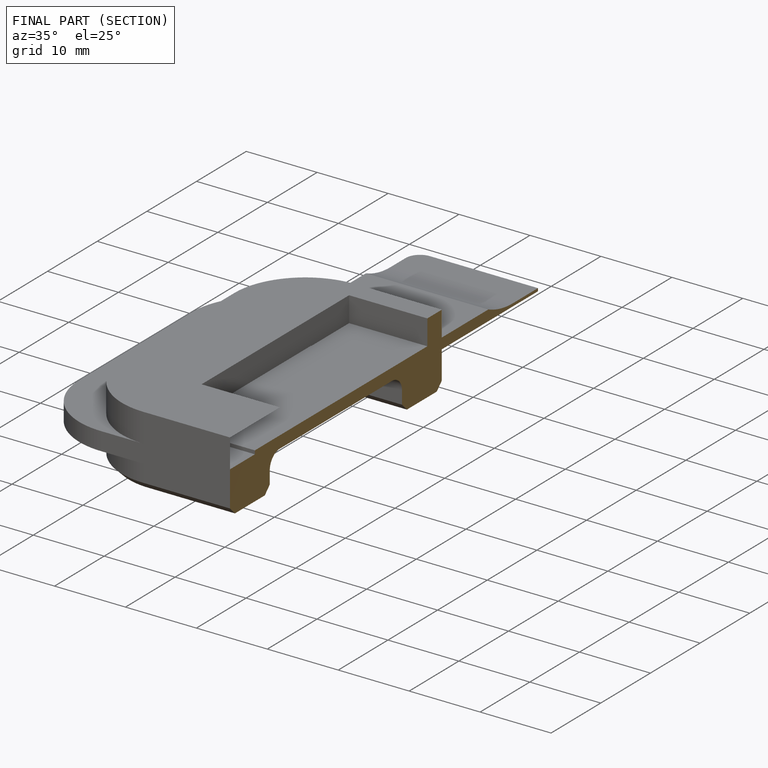
[diagram: finished part — half-section view (interior)]
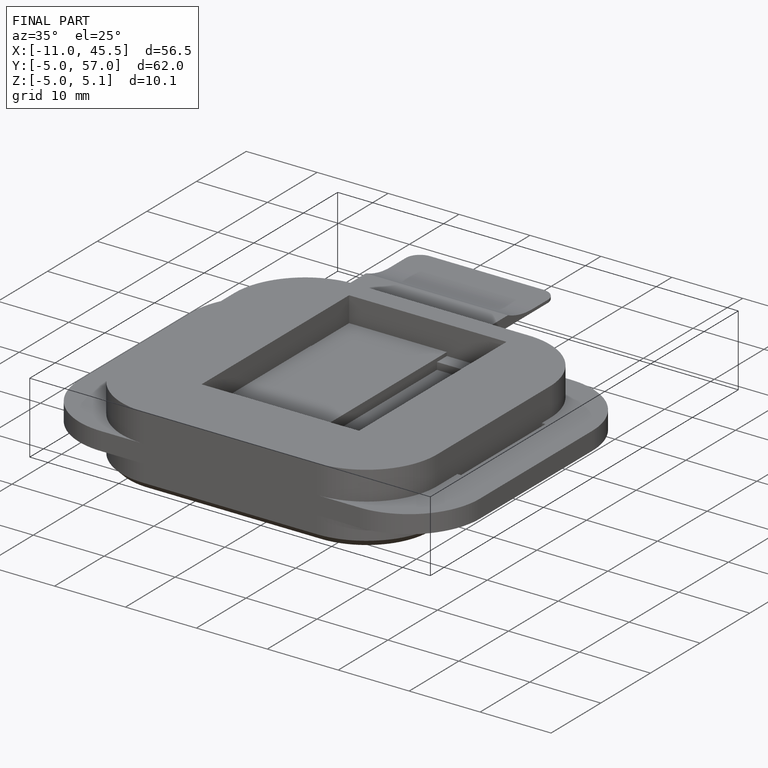
[diagram: finished part — iso view with bounding-box wireframe]
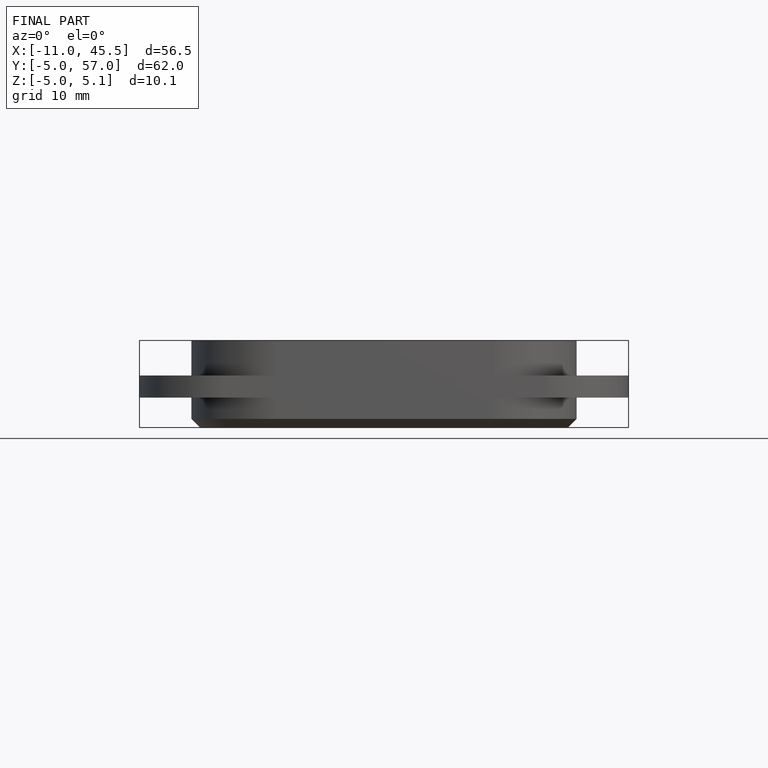
[diagram: finished part — front view with bounding-box wireframe]
